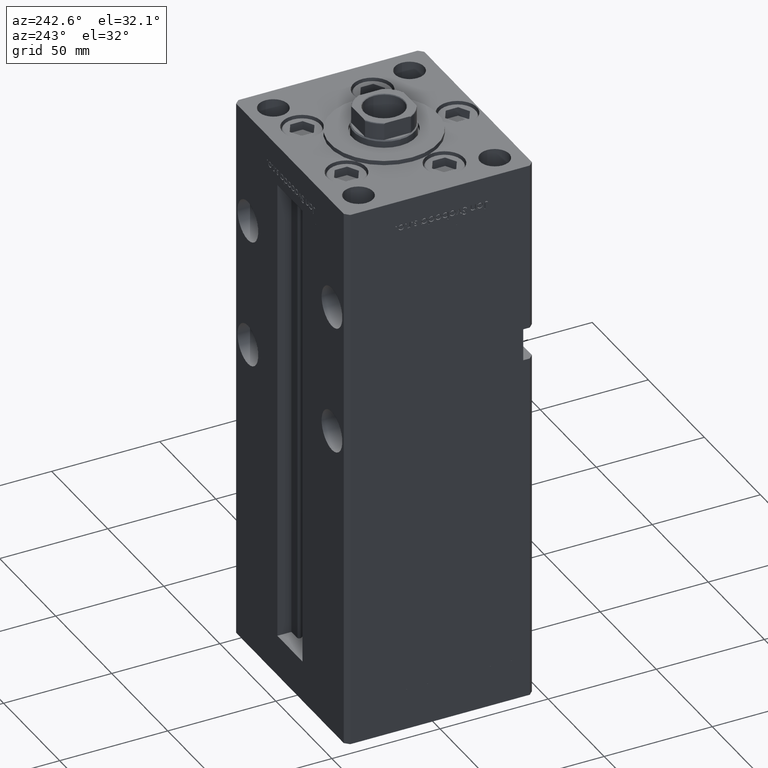
[diagram: clean part render]
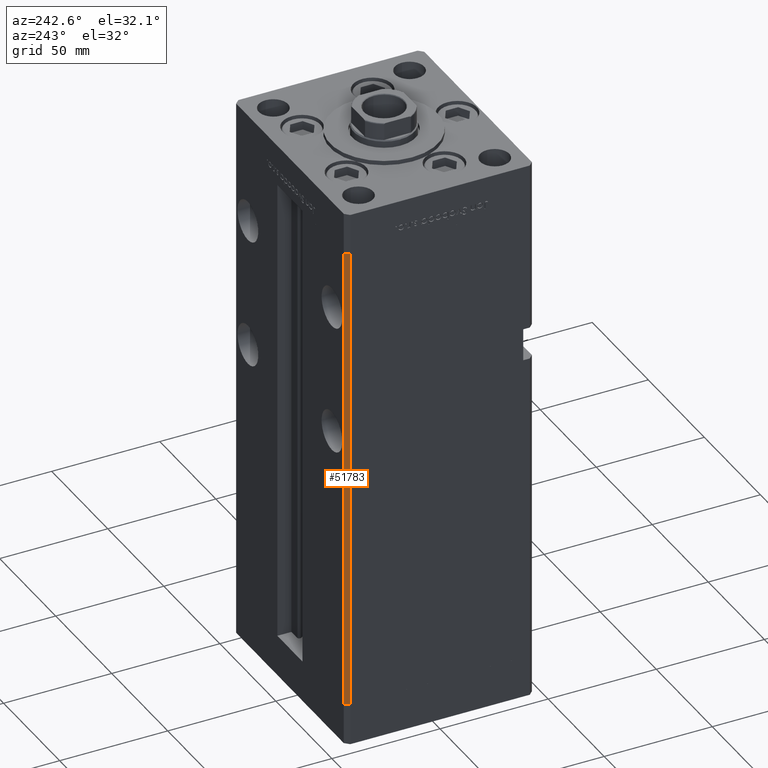
[diagram: same view with one face highlighted and labeled with its STEP entity id]
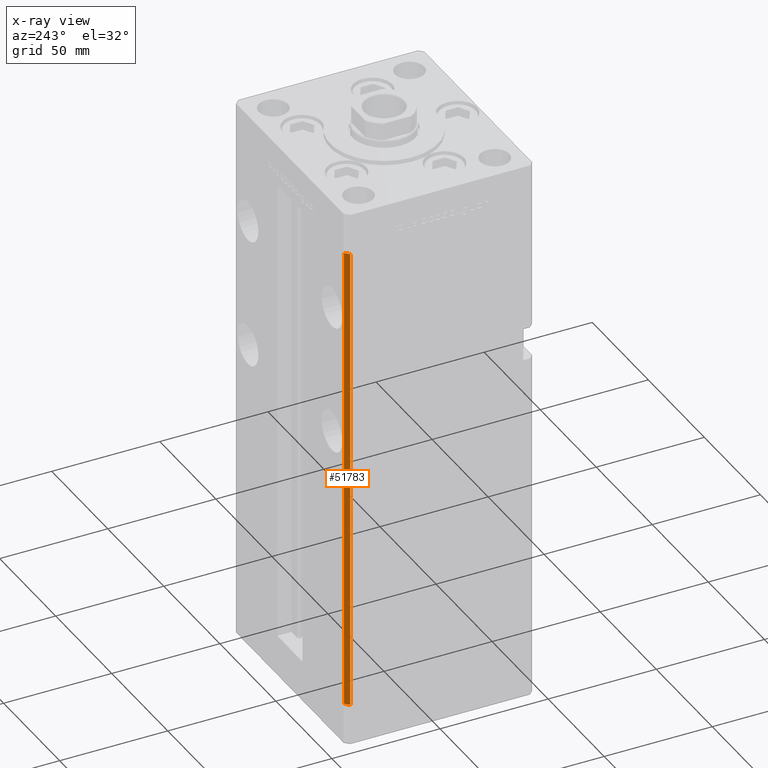
[diagram: x-ray of the same camera — body ghosted, the highlighted face saturated]
A machine part, auxiliary view. The second image highlights one B-rep face of the part: STEP entity #51783.
The next image is the same camera in x-ray: the body ghosted, the highlighted face saturated — about 0% of this face is hidden behind the body in this view.
In plain terms, the highlighted planar face has unit normal (0.7071, -0.7071, 0).
Its self-contained STEP definition (entity closure, byte-faithful):
#2144 = VECTOR ( 'NONE', #3168, 1000.000000000000000 ) ;
#3168 = DIRECTION ( 'NONE',  ( -0.7071067811865487940, -0.7071067811865463515, 0.000000000000000000 ) ) ;
#4337 = CARTESIAN_POINT ( 'NONE',  ( -48.00000000000000711, 43.50000000000000000, 0.000000000000000000 ) ) ;
#4650 = FACE_OUTER_BOUND ( 'NONE', #29679, .T. ) ;
#4696 = DIRECTION ( 'NONE',  ( -0.000000000000000000, -0.000000000000000000, -1.000000000000000000 ) ) ;
#8078 = DIRECTION ( 'NONE',  ( -0.7071067811865487940, -0.7071067811865463515, 0.000000000000000000 ) ) ;
#8402 = DIRECTION ( 'NONE',  ( 0.7071067811865463515, -0.7071067811865486830, 0.000000000000000000 ) ) ;
#12084 = VERTEX_POINT ( 'NONE', #34806 ) ;
#12703 = DIRECTION ( 'NONE',  ( -0.000000000000000000, -0.000000000000000000, -1.000000000000000000 ) ) ;
#12729 = EDGE_CURVE ( 'NONE', #52473, #53140, #49769, .T. ) ;
#12739 = CARTESIAN_POINT ( 'NONE',  ( -50.00000000000001421, 41.49999999999999289, 218.5000000000000000 ) ) ;
#16745 = LINE ( 'NONE', #49545, #43258 ) ;
#19240 = EDGE_CURVE ( 'NONE', #26812, #53140, #33990, .T. ) ;
#19728 = EDGE_CURVE ( 'NONE', #12084, #26812, #25266, .T. ) ;
#20798 = DIRECTION ( 'NONE',  ( 0.7071067811865486830, 0.7071067811865463515, 0.000000000000000000 ) ) ;
#21100 = CARTESIAN_POINT ( 'NONE',  ( -50.00000000000001421, 41.49999999999999289, 218.5000000000000000 ) ) ;
#24037 = ORIENTED_EDGE ( 'NONE', *, *, #12729, .T. ) ;
#24629 = EDGE_CURVE ( 'NONE', #12084, #52473, #16745, .T. ) ;
#25266 = LINE ( 'NONE', #41656, #2144 ) ;
#26812 = VERTEX_POINT ( 'NONE', #12739 ) ;
#27660 = CARTESIAN_POINT ( 'NONE',  ( -50.00000000000001421, 41.49999999999999289, 0.000000000000000000 ) ) ;
#28774 = VECTOR ( 'NONE', #4696, 1000.000000000000000 ) ;
#29679 = EDGE_LOOP ( 'NONE', ( #24037, #51181, #48220, #51100 ) ) ;
#33990 = LINE ( 'NONE', #21100, #28774 ) ;
#34806 = CARTESIAN_POINT ( 'NONE',  ( -48.00000000000000711, 43.50000000000000000, 218.5000000000000000 ) ) ;
#36907 = PLANE ( 'NONE',  #44798 ) ;
#39414 = CARTESIAN_POINT ( 'NONE',  ( -48.00000000000000711, 43.50000000000000000, 0.000000000000000000 ) ) ;
#41656 = CARTESIAN_POINT ( 'NONE',  ( -48.00000000000000711, 43.50000000000000000, 218.5000000000000000 ) ) ;
#43258 = VECTOR ( 'NONE', #12703, 1000.000000000000000 ) ;
#44798 = AXIS2_PLACEMENT_3D ( 'NONE', #49561, #8402, #20798 ) ;
#48220 = ORIENTED_EDGE ( 'NONE', *, *, #19728, .F. ) ;
#49545 = CARTESIAN_POINT ( 'NONE',  ( -48.00000000000000711, 43.50000000000000000, 218.5000000000000000 ) ) ;
#49561 = CARTESIAN_POINT ( 'NONE',  ( -48.00000000000000711, 43.50000000000000000, 218.5000000000000000 ) ) ;
#49769 = LINE ( 'NONE', #4337, #51738 ) ;
#51100 = ORIENTED_EDGE ( 'NONE', *, *, #24629, .T. ) ;
#51181 = ORIENTED_EDGE ( 'NONE', *, *, #19240, .F. ) ;
#51738 = VECTOR ( 'NONE', #8078, 1000.000000000000000 ) ;
#51783 = ADVANCED_FACE ( 'NONE', ( #4650 ), #36907, .F. ) ;
#52473 = VERTEX_POINT ( 'NONE', #39414 ) ;
#53140 = VERTEX_POINT ( 'NONE', #27660 ) ;